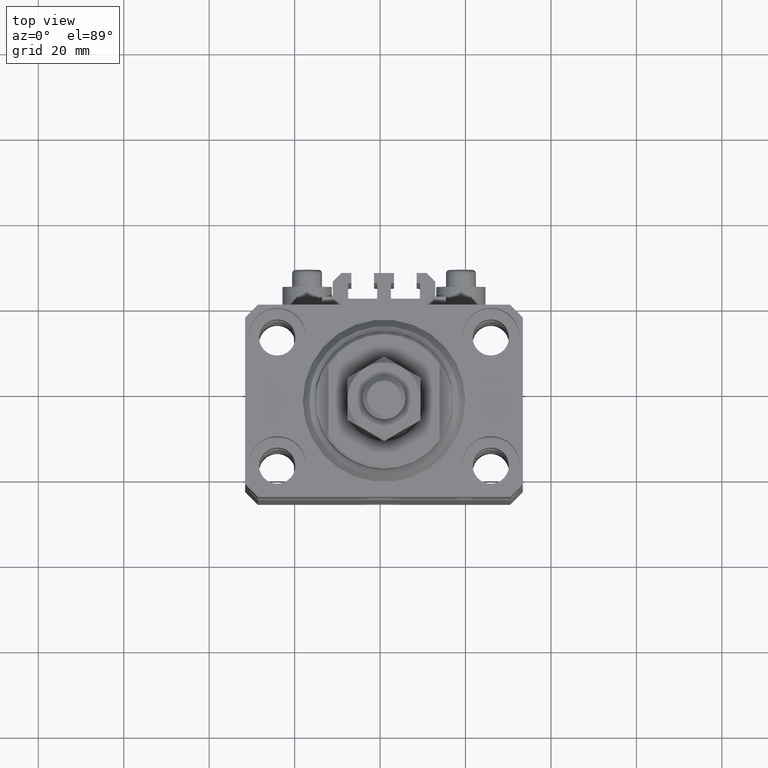
[diagram: clean part render]
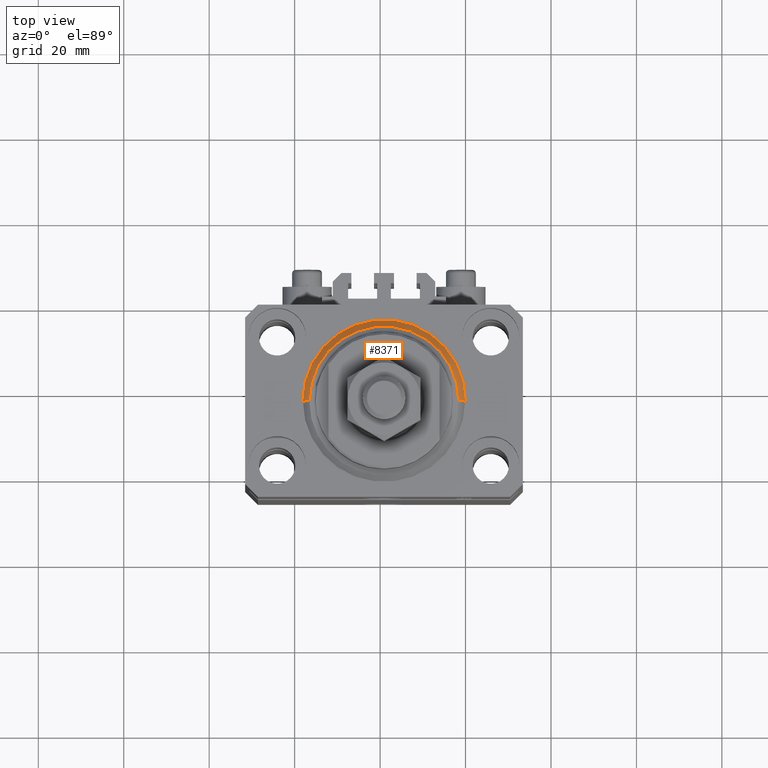
[diagram: same view with one face highlighted and labeled with its STEP entity id]
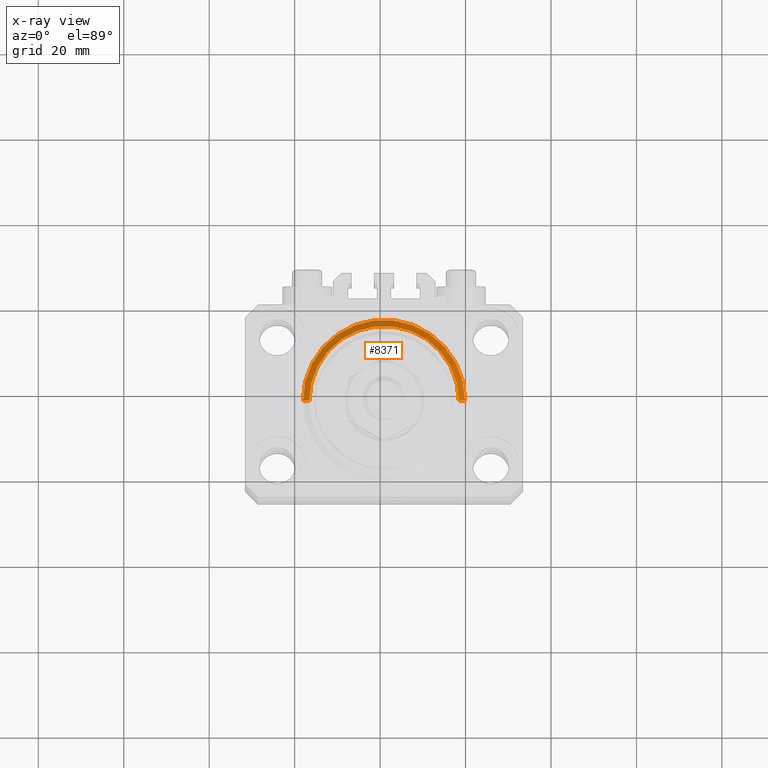
[diagram: x-ray of the same camera — body ghosted, the highlighted face saturated]
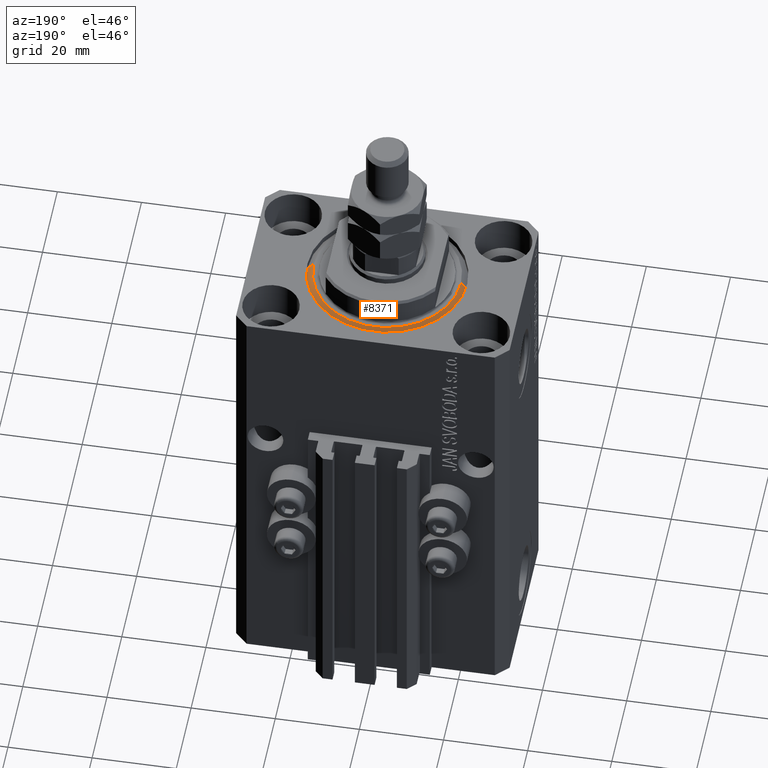
[diagram: same view with one face highlighted and labeled with its STEP entity id]
A machine part, top view. The second image highlights one B-rep face of the part: STEP entity #8371.
The next image is the same camera in x-ray: the body ghosted, the highlighted face saturated — about 0% of this face is hidden behind the body in this view.
A second angle (auxiliary view) of the same face is appended — the face is thin or edge-on in the first view.
In plain terms, the highlighted conical surface has half-angle 45 deg.
Its self-contained STEP definition (entity closure, byte-faithful):
#2517 = LINE ( 'NONE', #39716, #15159 ) ;
#4233 = VECTOR ( 'NONE', #19089, 1000.000000000000000 ) ;
#4544 = CARTESIAN_POINT ( 'NONE',  ( -17.49999999999999645, 2.234980408443919215E-15, 0.000000000000000000 ) ) ;
#5673 = AXIS2_PLACEMENT_3D ( 'NONE', #24517, #47435, #46950 ) ;
#6111 = FACE_OUTER_BOUND ( 'NONE', #15918, .T. ) ;
#8371 = ADVANCED_FACE ( 'NONE', ( #6111 ), #18325, .T. ) ;
#8688 = ORIENTED_EDGE ( 'NONE', *, *, #46784, .F. ) ;
#9547 = CARTESIAN_POINT ( 'NONE',  ( 0.000000000000000000, 0.000000000000000000, 1.500000000000001332 ) ) ;
#10461 = EDGE_CURVE ( 'NONE', #15195, #33753, #10954, .T. ) ;
#10954 = LINE ( 'NONE', #29920, #4233 ) ;
#11543 = EDGE_CURVE ( 'NONE', #15855, #33823, #2517, .T. ) ;
#12148 = CIRCLE ( 'NONE', #39651, 19.00000000000000000 ) ;
#13219 = CARTESIAN_POINT ( 'NONE',  ( 0.000000000000000000, 0.000000000000000000, 1.500000000000001332 ) ) ;
#15159 = VECTOR ( 'NONE', #44404, 1000.000000000000000 ) ;
#15195 = VERTEX_POINT ( 'NONE', #4544 ) ;
#15855 = VERTEX_POINT ( 'NONE', #29923 ) ;
#15918 = EDGE_LOOP ( 'NONE', ( #20003, #34149, #8688, #47338 ) ) ;
#16691 = DIRECTION ( 'NONE',  ( -0.000000000000000000, -0.000000000000000000, 1.000000000000000000 ) ) ;
#18325 = CONICAL_SURFACE ( 'NONE', #47422, 19.00000000000000000, 0.7853981633974492782 ) ;
#19089 = DIRECTION ( 'NONE',  ( -0.7071067811865483499, 8.659560562354942719E-17, 0.7071067811865467956 ) ) ;
#20003 = ORIENTED_EDGE ( 'NONE', *, *, #40386, .F. ) ;
#24517 = CARTESIAN_POINT ( 'NONE',  ( 0.000000000000000000, 0.000000000000000000, 0.000000000000000000 ) ) ;
#24563 = DIRECTION ( 'NONE',  ( 1.000000000000000000, 0.000000000000000000, 0.000000000000000000 ) ) ;
#29920 = CARTESIAN_POINT ( 'NONE',  ( -19.00000000000000000, 2.326828918379970970E-15, 1.500000000000001332 ) ) ;
#29923 = CARTESIAN_POINT ( 'NONE',  ( 17.49999999999999645, 0.000000000000000000, 0.000000000000000000 ) ) ;
#32299 = CARTESIAN_POINT ( 'NONE',  ( -19.00000000000000000, 0.000000000000000000, 1.500000000000001332 ) ) ;
#32427 = DIRECTION ( 'NONE',  ( 1.000000000000000000, 0.000000000000000000, 0.000000000000000000 ) ) ;
#32937 = DIRECTION ( 'NONE',  ( -0.000000000000000000, -0.000000000000000000, 1.000000000000000000 ) ) ;
#33753 = VERTEX_POINT ( 'NONE', #32299 ) ;
#33823 = VERTEX_POINT ( 'NONE', #44128 ) ;
#34149 = ORIENTED_EDGE ( 'NONE', *, *, #10461, .T. ) ;
#39651 = AXIS2_PLACEMENT_3D ( 'NONE', #13219, #16691, #32427 ) ;
#39716 = CARTESIAN_POINT ( 'NONE',  ( 19.00000000000000000, 0.000000000000000000, 1.500000000000001332 ) ) ;
#40386 = EDGE_CURVE ( 'NONE', #15195, #15855, #41873, .T. ) ;
#41873 = CIRCLE ( 'NONE', #5673, 17.49999999999999645 ) ;
#44128 = CARTESIAN_POINT ( 'NONE',  ( 19.00000000000000000, 2.326828918379970970E-15, 1.500000000000001332 ) ) ;
#44404 = DIRECTION ( 'NONE',  ( 0.7071067811865483499, 0.000000000000000000, 0.7071067811865467956 ) ) ;
#46784 = EDGE_CURVE ( 'NONE', #33823, #33753, #12148, .T. ) ;
#46950 = DIRECTION ( 'NONE',  ( 1.000000000000000000, 0.000000000000000000, 0.000000000000000000 ) ) ;
#47338 = ORIENTED_EDGE ( 'NONE', *, *, #11543, .F. ) ;
#47422 = AXIS2_PLACEMENT_3D ( 'NONE', #9547, #32937, #24563 ) ;
#47435 = DIRECTION ( 'NONE',  ( -0.000000000000000000, -0.000000000000000000, -1.000000000000000000 ) ) ;